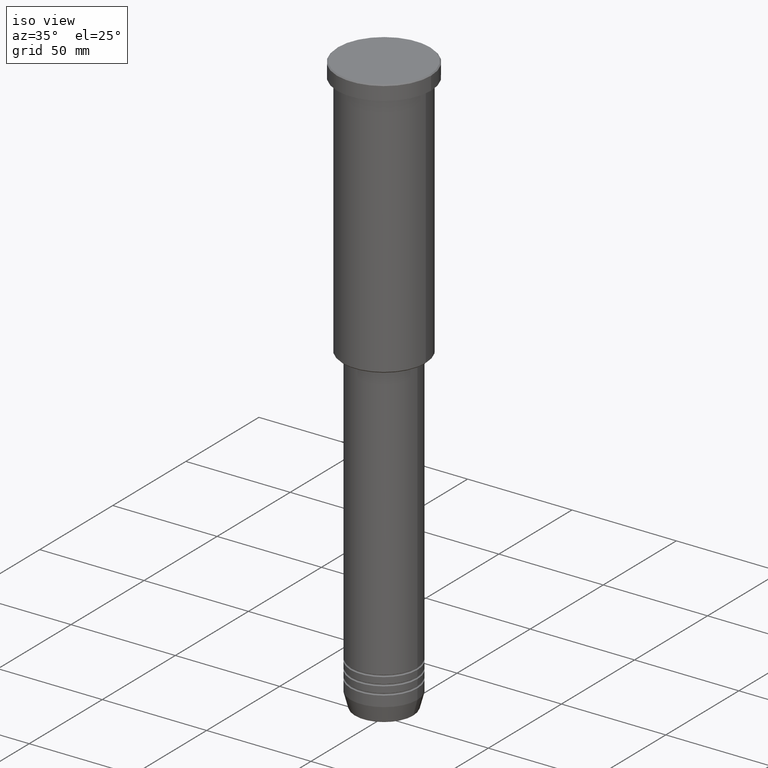
[diagram: clean part render]
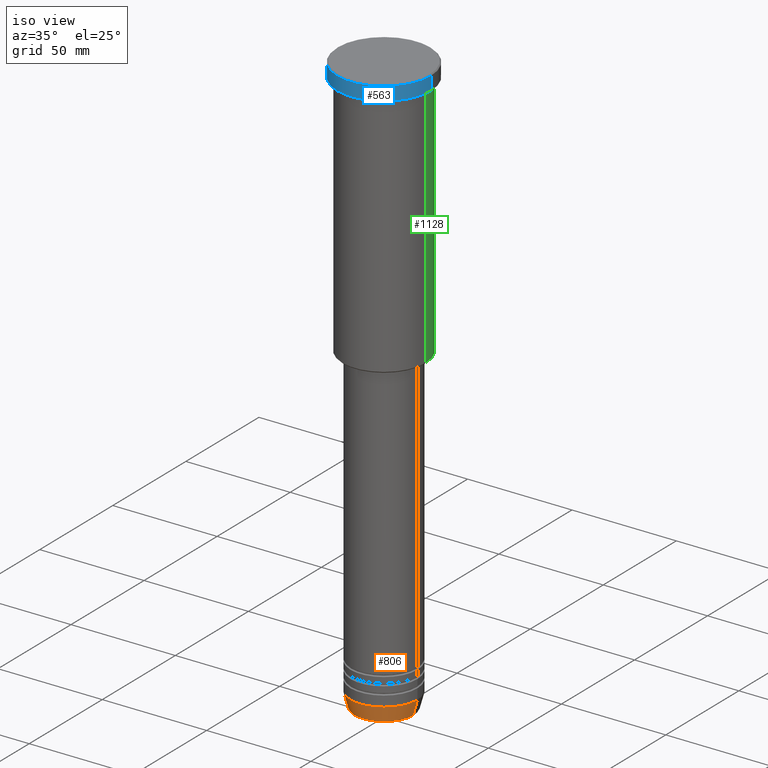
[diagram: same view with three faces highlighted in distinct colors, each labeled with its STEP entity id]
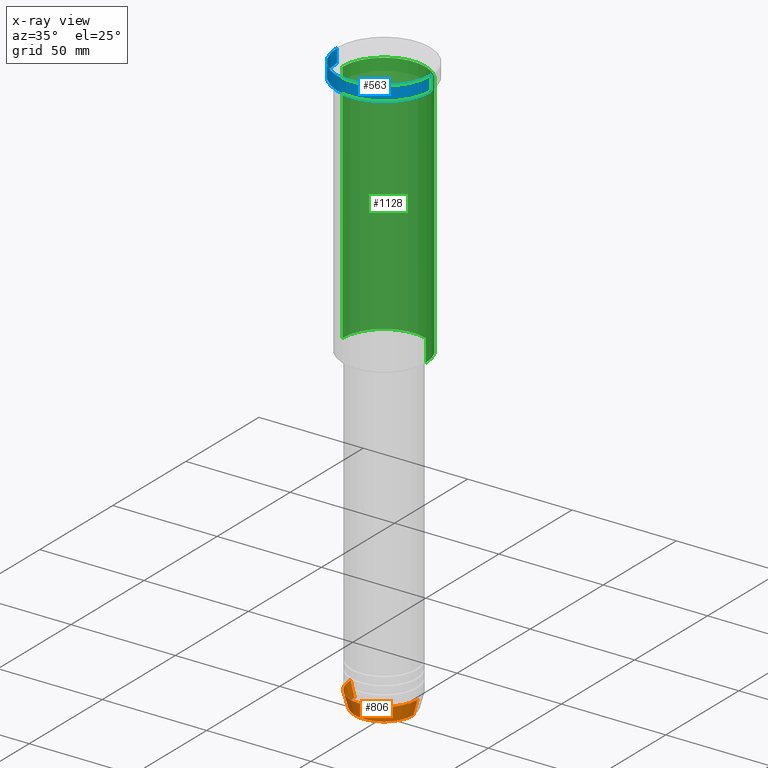
[diagram: x-ray of the same camera — body ghosted, the three highlighted faces saturated]
A machine part, iso view with three faces highlighted in distinct colors.
The next image is the same camera in x-ray (body ghosted, the three faces saturated) — at least one of them is partly hidden behind the body in this view.
Their STEP definitions:

[orange] entity #806 — the highlighted conical surface has half-angle 15 deg.
#5 = CARTESIAN_POINT ( 'NONE',  ( 16.00000000000000000, 0.000000000000000000, -272.5000000000000000 ) ) ;
#10 = VECTOR ( 'NONE', #599, 1000.000000000000000 ) ;
#47 = CARTESIAN_POINT ( 'NONE',  ( 16.00000000000000000, 0.000000000000000000, -272.5000000000000000 ) ) ;
#84 = DIRECTION ( 'NONE',  ( -0.000000000000000000, -0.000000000000000000, 1.000000000000000000 ) ) ;
#91 = CIRCLE ( 'NONE', #760, 16.00000000000000000 ) ;
#229 = ORIENTED_EDGE ( 'NONE', *, *, #905, .F. ) ;
#295 = DIRECTION ( 'NONE',  ( -0.2588190451025213501, 3.169619151431772337E-17, 0.9659258262890680902 ) ) ;
#307 = AXIS2_PLACEMENT_3D ( 'NONE', #1086, #885, #814 ) ;
#360 = CONICAL_SURFACE ( 'NONE', #307, 16.00000000000000000, 0.2617993877991500740 ) ;
#374 = AXIS2_PLACEMENT_3D ( 'NONE', #981, #449, #803 ) ;
#395 = CARTESIAN_POINT ( 'NONE',  ( -16.00000000000000000, 1.959434878635765131E-15, -272.5000000000000000 ) ) ;
#429 = DIRECTION ( 'NONE',  ( 1.000000000000000000, 0.000000000000000000, 0.000000000000000000 ) ) ;
#447 = ORIENTED_EDGE ( 'NONE', *, *, #854, .T. ) ;
#449 = DIRECTION ( 'NONE',  ( -0.000000000000000000, -0.000000000000000000, 1.000000000000000000 ) ) ;
#464 = LINE ( 'NONE', #5, #10 ) ;
#468 = ORIENTED_EDGE ( 'NONE', *, *, #1006, .T. ) ;
#479 = CARTESIAN_POINT ( 'NONE',  ( -14.08968047592161632, 1.842461544110200874E-15, -279.6294095225512706 ) ) ;
#517 = EDGE_LOOP ( 'NONE', ( #229, #447, #468, #796 ) ) ;
#554 = CIRCLE ( 'NONE', #374, 14.08968047592161632 ) ;
#562 = LINE ( 'NONE', #743, #1042 ) ;
#599 = DIRECTION ( 'NONE',  ( 0.2588190451025213501, 0.000000000000000000, 0.9659258262890680902 ) ) ;
#615 = CARTESIAN_POINT ( 'NONE',  ( 0.000000000000000000, 0.000000000000000000, -272.5000000000000000 ) ) ;
#685 = VERTEX_POINT ( 'NONE', #1079 ) ;
#743 = CARTESIAN_POINT ( 'NONE',  ( -16.00000000000000000, 1.959434878635765131E-15, -272.5000000000000000 ) ) ;
#760 = AXIS2_PLACEMENT_3D ( 'NONE', #615, #84, #429 ) ;
#796 = ORIENTED_EDGE ( 'NONE', *, *, #845, .F. ) ;
#803 = DIRECTION ( 'NONE',  ( 1.000000000000000000, 0.000000000000000000, 0.000000000000000000 ) ) ;
#806 = ADVANCED_FACE ( 'NONE', ( #1062 ), #360, .T. ) ;
#814 = DIRECTION ( 'NONE',  ( 1.000000000000000000, 0.000000000000000000, 0.000000000000000000 ) ) ;
#845 = EDGE_CURVE ( 'NONE', #1118, #1107, #91, .T. ) ;
#854 = EDGE_CURVE ( 'NONE', #937, #685, #554, .T. ) ;
#885 = DIRECTION ( 'NONE',  ( -0.000000000000000000, -0.000000000000000000, 1.000000000000000000 ) ) ;
#905 = EDGE_CURVE ( 'NONE', #937, #1118, #562, .T. ) ;
#937 = VERTEX_POINT ( 'NONE', #479 ) ;
#981 = CARTESIAN_POINT ( 'NONE',  ( 0.000000000000000000, 0.000000000000000000, -279.6294095225512706 ) ) ;
#1006 = EDGE_CURVE ( 'NONE', #685, #1107, #464, .T. ) ;
#1042 = VECTOR ( 'NONE', #295, 1000.000000000000000 ) ;
#1062 = FACE_OUTER_BOUND ( 'NONE', #517, .T. ) ;
#1079 = CARTESIAN_POINT ( 'NONE',  ( 14.08968047592161632, 0.000000000000000000, -279.6294095225512706 ) ) ;
#1086 = CARTESIAN_POINT ( 'NONE',  ( 0.000000000000000000, 0.000000000000000000, -272.5000000000000000 ) ) ;
#1107 = VERTEX_POINT ( 'NONE', #47 ) ;
#1118 = VERTEX_POINT ( 'NONE', #395 ) ;

[blue] entity #563 — the highlighted cylindrical surface (partial cylindrical patch) has radius 22.5 mm, axis along (-0, -0, 1).
#17 = CARTESIAN_POINT ( 'NONE',  ( 0.000000000000000000, 0.000000000000000000, -6.999999999999995559 ) ) ;
#74 = FACE_OUTER_BOUND ( 'NONE', #532, .T. ) ;
#114 = VERTEX_POINT ( 'NONE', #590 ) ;
#146 = DIRECTION ( 'NONE',  ( -0.000000000000000000, -0.000000000000000000, 1.000000000000000000 ) ) ;
#158 = DIRECTION ( 'NONE',  ( -0.000000000000000000, -0.000000000000000000, 1.000000000000000000 ) ) ;
#175 = CIRCLE ( 'NONE', #1045, 22.50000000000000000 ) ;
#224 = VERTEX_POINT ( 'NONE', #417 ) ;
#273 = VECTOR ( 'NONE', #146, 1000.000000000000000 ) ;
#294 = EDGE_CURVE ( 'NONE', #983, #224, #935, .T. ) ;
#327 = CARTESIAN_POINT ( 'NONE',  ( 22.50000000000000000, 0.000000000000000000, 0.000000000000000000 ) ) ;
#417 = CARTESIAN_POINT ( 'NONE',  ( -22.50000000000000000, 2.755455298081544778E-15, -0.4999999999999379940 ) ) ;
#476 = CARTESIAN_POINT ( 'NONE',  ( 22.50000000000000000, 0.000000000000000000, -0.4999999999999379940 ) ) ;
#491 = CARTESIAN_POINT ( 'NONE',  ( -22.50000000000000000, 2.755455298081544778E-15, -6.999999999999995559 ) ) ;
#501 = ORIENTED_EDGE ( 'NONE', *, *, #1048, .T. ) ;
#532 = EDGE_LOOP ( 'NONE', ( #555, #692, #501, #621 ) ) ;
#555 = ORIENTED_EDGE ( 'NONE', *, *, #643, .F. ) ;
#563 = ADVANCED_FACE ( 'NONE', ( #74 ), #630, .T. ) ;
#590 = CARTESIAN_POINT ( 'NONE',  ( 22.50000000000000000, 0.000000000000000000, -6.999999999999995559 ) ) ;
#594 = LINE ( 'NONE', #327, #273 ) ;
#608 = LINE ( 'NONE', #818, #823 ) ;
#614 = DIRECTION ( 'NONE',  ( 0.000000000000000000, 0.000000000000000000, -1.000000000000000000 ) ) ;
#621 = ORIENTED_EDGE ( 'NONE', *, *, #294, .T. ) ;
#630 = CYLINDRICAL_SURFACE ( 'NONE', #746, 22.50000000000000000 ) ;
#643 = EDGE_CURVE ( 'NONE', #1131, #224, #608, .T. ) ;
#681 = CARTESIAN_POINT ( 'NONE',  ( 0.000000000000000000, 0.000000000000000000, -0.4999999999999379940 ) ) ;
#692 = ORIENTED_EDGE ( 'NONE', *, *, #867, .T. ) ;
#722 = DIRECTION ( 'NONE',  ( 1.000000000000000000, 0.000000000000000000, 0.000000000000000000 ) ) ;
#746 = AXIS2_PLACEMENT_3D ( 'NONE', #897, #900, #1088 ) ;
#798 = AXIS2_PLACEMENT_3D ( 'NONE', #681, #614, #722 ) ;
#818 = CARTESIAN_POINT ( 'NONE',  ( -22.50000000000000000, 2.755455298081544778E-15, 0.000000000000000000 ) ) ;
#823 = VECTOR ( 'NONE', #158, 1000.000000000000000 ) ;
#867 = EDGE_CURVE ( 'NONE', #1131, #114, #175, .T. ) ;
#897 = CARTESIAN_POINT ( 'NONE',  ( 0.000000000000000000, 0.000000000000000000, 0.000000000000000000 ) ) ;
#900 = DIRECTION ( 'NONE',  ( -0.000000000000000000, -0.000000000000000000, 1.000000000000000000 ) ) ;
#935 = CIRCLE ( 'NONE', #798, 22.50000000000000000 ) ;
#983 = VERTEX_POINT ( 'NONE', #476 ) ;
#1032 = DIRECTION ( 'NONE',  ( -0.000000000000000000, -0.000000000000000000, 1.000000000000000000 ) ) ;
#1045 = AXIS2_PLACEMENT_3D ( 'NONE', #17, #1032, #1110 ) ;
#1048 = EDGE_CURVE ( 'NONE', #114, #983, #594, .T. ) ;
#1088 = DIRECTION ( 'NONE',  ( 1.000000000000000000, 0.000000000000000000, 0.000000000000000000 ) ) ;
#1110 = DIRECTION ( 'NONE',  ( 1.000000000000000000, 0.000000000000000000, 0.000000000000000000 ) ) ;
#1131 = VERTEX_POINT ( 'NONE', #491 ) ;

[green] entity #1128 — the highlighted cylindrical surface (partial cylindrical patch) has radius 20 mm, axis along (-0, -0, 1).
#65 = AXIS2_PLACEMENT_3D ( 'NONE', #261, #710, #514 ) ;
#81 = CARTESIAN_POINT ( 'NONE',  ( -20.00000000000000000, 2.449293598294706513E-15, -7.999999999999994671 ) ) ;
#97 = VERTEX_POINT ( 'NONE', #230 ) ;
#131 = CYLINDRICAL_SURFACE ( 'NONE', #1140, 20.00000000000000355 ) ;
#149 = DIRECTION ( 'NONE',  ( -1.000000000000000000, 0.000000000000000000, 0.000000000000000000 ) ) ;
#161 = VERTEX_POINT ( 'NONE', #81 ) ;
#203 = EDGE_LOOP ( 'NONE', ( #396, #638, #996, #334 ) ) ;
#222 = CARTESIAN_POINT ( 'NONE',  ( -20.00000000000000355, 2.449293598294706907E-15, 0.000000000000000000 ) ) ;
#230 = CARTESIAN_POINT ( 'NONE',  ( 20.00000000000000355, 0.000000000000000000, -125.4999999999999432 ) ) ;
#236 = CIRCLE ( 'NONE', #65, 20.00000000000000000 ) ;
#261 = CARTESIAN_POINT ( 'NONE',  ( 0.000000000000000000, 0.000000000000000000, -7.999999999999994671 ) ) ;
#291 = VERTEX_POINT ( 'NONE', #319 ) ;
#302 = DIRECTION ( 'NONE',  ( -0.000000000000000000, -0.000000000000000000, 1.000000000000000000 ) ) ;
#319 = CARTESIAN_POINT ( 'NONE',  ( 20.00000000000000000, 0.000000000000000000, -7.999999999999994671 ) ) ;
#329 = VECTOR ( 'NONE', #795, 1000.000000000000000 ) ;
#334 = ORIENTED_EDGE ( 'NONE', *, *, #708, .F. ) ;
#338 = LINE ( 'NONE', #881, #329 ) ;
#357 = AXIS2_PLACEMENT_3D ( 'NONE', #1053, #684, #149 ) ;
#390 = EDGE_CURVE ( 'NONE', #291, #161, #236, .T. ) ;
#396 = ORIENTED_EDGE ( 'NONE', *, *, #1073, .T. ) ;
#514 = DIRECTION ( 'NONE',  ( 1.000000000000000000, 0.000000000000000000, 0.000000000000000000 ) ) ;
#523 = VECTOR ( 'NONE', #302, 1000.000000000000000 ) ;
#638 = ORIENTED_EDGE ( 'NONE', *, *, #947, .T. ) ;
#684 = DIRECTION ( 'NONE',  ( -0.000000000000000000, -0.000000000000000000, 1.000000000000000000 ) ) ;
#708 = EDGE_CURVE ( 'NONE', #97, #291, #338, .T. ) ;
#710 = DIRECTION ( 'NONE',  ( -0.000000000000000000, -0.000000000000000000, 1.000000000000000000 ) ) ;
#795 = DIRECTION ( 'NONE',  ( -0.000000000000000000, -0.000000000000000000, 1.000000000000000000 ) ) ;
#848 = LINE ( 'NONE', #222, #523 ) ;
#865 = CARTESIAN_POINT ( 'NONE',  ( 0.000000000000000000, 0.000000000000000000, 0.000000000000000000 ) ) ;
#869 = CIRCLE ( 'NONE', #357, 20.00000000000000355 ) ;
#881 = CARTESIAN_POINT ( 'NONE',  ( 20.00000000000000355, 0.000000000000000000, 0.000000000000000000 ) ) ;
#944 = CARTESIAN_POINT ( 'NONE',  ( -20.00000000000000355, 2.449293598294706907E-15, -125.4999999999999432 ) ) ;
#947 = EDGE_CURVE ( 'NONE', #949, #161, #848, .T. ) ;
#948 = FACE_OUTER_BOUND ( 'NONE', #203, .T. ) ;
#949 = VERTEX_POINT ( 'NONE', #944 ) ;
#996 = ORIENTED_EDGE ( 'NONE', *, *, #390, .F. ) ;
#1053 = CARTESIAN_POINT ( 'NONE',  ( 0.000000000000000000, 0.000000000000000000, -125.4999999999999432 ) ) ;
#1073 = EDGE_CURVE ( 'NONE', #97, #949, #869, .T. ) ;
#1124 = DIRECTION ( 'NONE',  ( 1.000000000000000000, 0.000000000000000000, 0.000000000000000000 ) ) ;
#1128 = ADVANCED_FACE ( 'NONE', ( #948 ), #131, .T. ) ;
#1140 = AXIS2_PLACEMENT_3D ( 'NONE', #865, #1144, #1124 ) ;
#1144 = DIRECTION ( 'NONE',  ( -0.000000000000000000, -0.000000000000000000, 1.000000000000000000 ) ) ;